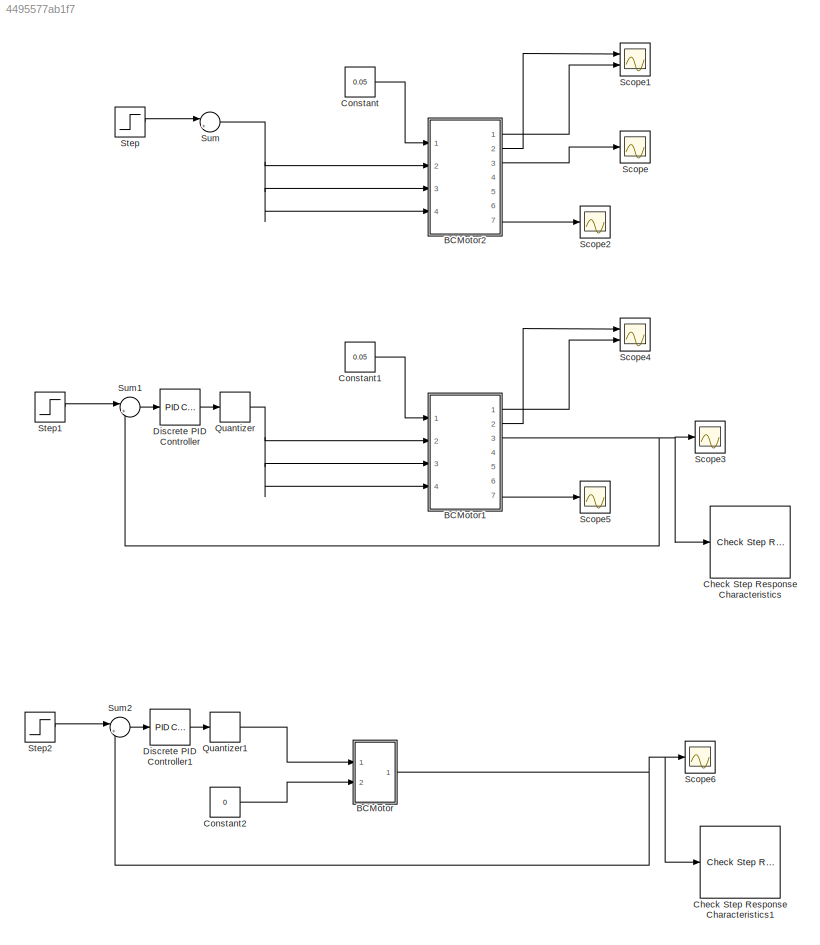
MODEL slx_4495577ab1f7
KIND model
CONFIG AbsTol = auto
CONFIG EnableMultiTasking = off
CONFIG FixedStep = auto
CONFIG MaxStep = auto
CONFIG MinStep = auto
CONFIG RelTol = 1e-5
CONFIG SampleTimeConstraint = Unconstrained
CONFIG SolverName = ode23
CONFIG StartTime = 0
CONFIG StopTime = 0.6
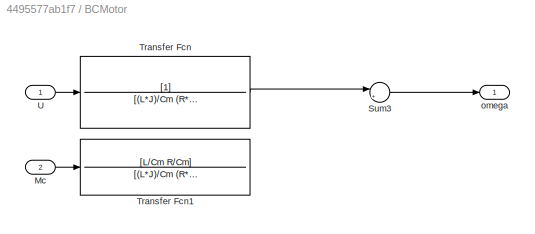
BLOCK [SubSystem] BCMotor
  Ports = [2, 1]
  RequestExecContextInheritance = off
BLOCK [Inport] BCMotor/Mc
  Port = 2
BLOCK [Sum] BCMotor/Sum3
  Inputs = |+-
  Ports = [2, 1]
BLOCK [TransferFcn] BCMotor/Transfer Fcn
  Denominator = [(L*J)/Cm (R*J)/Cm Ce]
BLOCK [TransferFcn] BCMotor/Transfer Fcn1
  Denominator = [(L*J)/Cm (R*J)/Cm Ce]
  Numerator = [L/Cm R/Cm]
BLOCK [Inport] BCMotor/U
BLOCK [Outport] BCMotor/omega
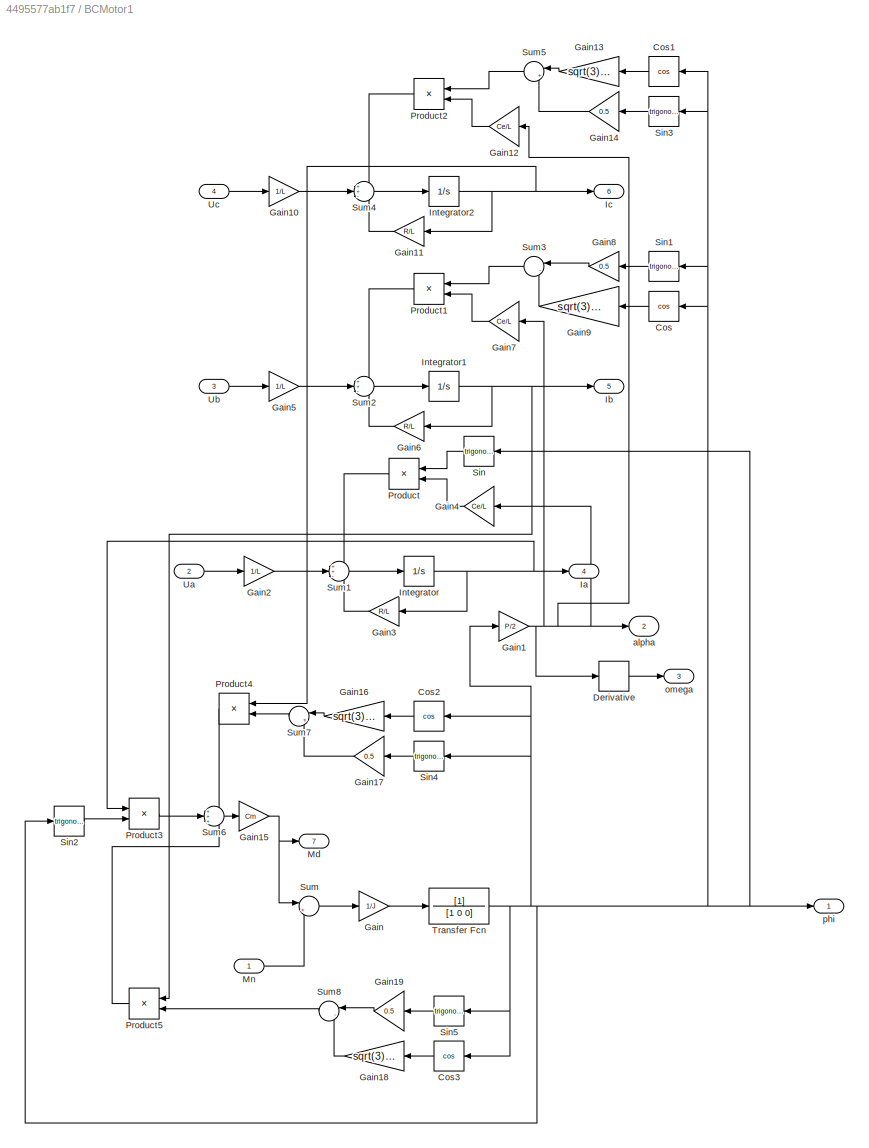
BLOCK [SubSystem] BCMotor1
  Commented = on
  Ports = [4, 7]
  RequestExecContextInheritance = off
BLOCK [Trigonometry] BCMotor1/Cos
  Operator = cos
  Ports = [1, 1]
BLOCK [Trigonometry] BCMotor1/Cos1
  Operator = cos
  Ports = [1, 1]
BLOCK [Trigonometry] BCMotor1/Cos2
  Operator = cos
  Ports = [1, 1]
BLOCK [Trigonometry] BCMotor1/Cos3
  Operator = cos
  Ports = [1, 1]
BLOCK [Derivative] BCMotor1/Derivative
BLOCK [Gain] BCMotor1/Gain
  Gain = 1/J
BLOCK [Gain] BCMotor1/Gain1
  Gain = P/2
BLOCK [Gain] BCMotor1/Gain10
  Gain = 1/L
BLOCK [Gain] BCMotor1/Gain11
  Gain = R/L
  NameLocation = top
BLOCK [Gain] BCMotor1/Gain12
  Gain = Ce/L
  NameLocation = top
BLOCK [Gain] BCMotor1/Gain13
  Gain = sqrt(3)/2
BLOCK [Gain] BCMotor1/Gain14
  Gain = 0.5
BLOCK [Gain] BCMotor1/Gain15
  Gain = Cm
BLOCK [Gain] BCMotor1/Gain16
  Gain = sqrt(3)/2
BLOCK [Gain] BCMotor1/Gain17
  Gain = 0.5
BLOCK [Gain] BCMotor1/Gain18
  Gain = sqrt(3)/2
BLOCK [Gain] BCMotor1/Gain19
  Gain = 0.5
BLOCK [Gain] BCMotor1/Gain2
  Gain = 1/L
BLOCK [Gain] BCMotor1/Gain3
  Gain = R/L
  NameLocation = top
BLOCK [Gain] BCMotor1/Gain4
  Gain = Ce/L
  NameLocation = top
BLOCK [Gain] BCMotor1/Gain5
  Gain = 1/L
BLOCK [Gain] BCMotor1/Gain6
  Gain = R/L
  NameLocation = top
BLOCK [Gain] BCMotor1/Gain7
  Gain = Ce/L
  NameLocation = top
BLOCK [Gain] BCMotor1/Gain8
  Gain = 0.5
BLOCK [Gain] BCMotor1/Gain9
  Gain = sqrt(3)/2
BLOCK [Outport] BCMotor1/Ia
  Port = 4
BLOCK [Outport] BCMotor1/Ib
  Port = 5
BLOCK [Outport] BCMotor1/Ic
  Port = 6
BLOCK [Integrator] BCMotor1/Integrator
  Ports = [1, 1]
BLOCK [Integrator] BCMotor1/Integrator1
  Ports = [1, 1]
BLOCK [Integrator] BCMotor1/Integrator2
  Ports = [1, 1]
BLOCK [Outport] BCMotor1/Md
  Port = 7
BLOCK [Inport] BCMotor1/Mn
BLOCK [Product] BCMotor1/Product
  Ports = [2, 1]
BLOCK [Product] BCMotor1/Product1
  Ports = [2, 1]
BLOCK [Product] BCMotor1/Product2
  Ports = [2, 1]
BLOCK [Product] BCMotor1/Product3
  Ports = [2, 1]
BLOCK [Product] BCMotor1/Product4
  Ports = [2, 1]
BLOCK [Product] BCMotor1/Product5
  Ports = [2, 1]
BLOCK [Trigonometry] BCMotor1/Sin
  Ports = [1, 1]
BLOCK [Trigonometry] BCMotor1/Sin1
  Ports = [1, 1]
BLOCK [Trigonometry] BCMotor1/Sin2
  Ports = [1, 1]
BLOCK [Trigonometry] BCMotor1/Sin3
  Ports = [1, 1]
BLOCK [Trigonometry] BCMotor1/Sin4
  Ports = [1, 1]
BLOCK [Trigonometry] BCMotor1/Sin5
  Ports = [1, 1]
BLOCK [Sum] BCMotor1/Sum
  Inputs = |+-
  Ports = [2, 1]
BLOCK [Sum] BCMotor1/Sum1
  Inputs = ++-
  Ports = [3, 1]
BLOCK [Sum] BCMotor1/Sum2
  Inputs = ++-
  Ports = [3, 1]
BLOCK [Sum] BCMotor1/Sum3
  Inputs = |--
  Ports = [2, 1]
BLOCK [Sum] BCMotor1/Sum4
  Inputs = ++-
  Ports = [3, 1]
BLOCK [Sum] BCMotor1/Sum5
  Inputs = |+-
  Ports = [2, 1]
BLOCK [Sum] BCMotor1/Sum6
  Inputs = +++
  Ports = [3, 1]
BLOCK [Sum] BCMotor1/Sum7
  Inputs = |+-
  Ports = [2, 1]
BLOCK [Sum] BCMotor1/Sum8
  Inputs = |--
  Ports = [2, 1]
BLOCK [TransferFcn] BCMotor1/Transfer Fcn
  Denominator = [1 0 0]
BLOCK [Inport] BCMotor1/Ua
  Port = 2
BLOCK [Inport] BCMotor1/Ub
  Port = 3
BLOCK [Inport] BCMotor1/Uc
  Port = 4
BLOCK [Outport] BCMotor1/alpha
  Port = 2
BLOCK [Outport] BCMotor1/omega
  Port = 3
BLOCK [Outport] BCMotor1/phi
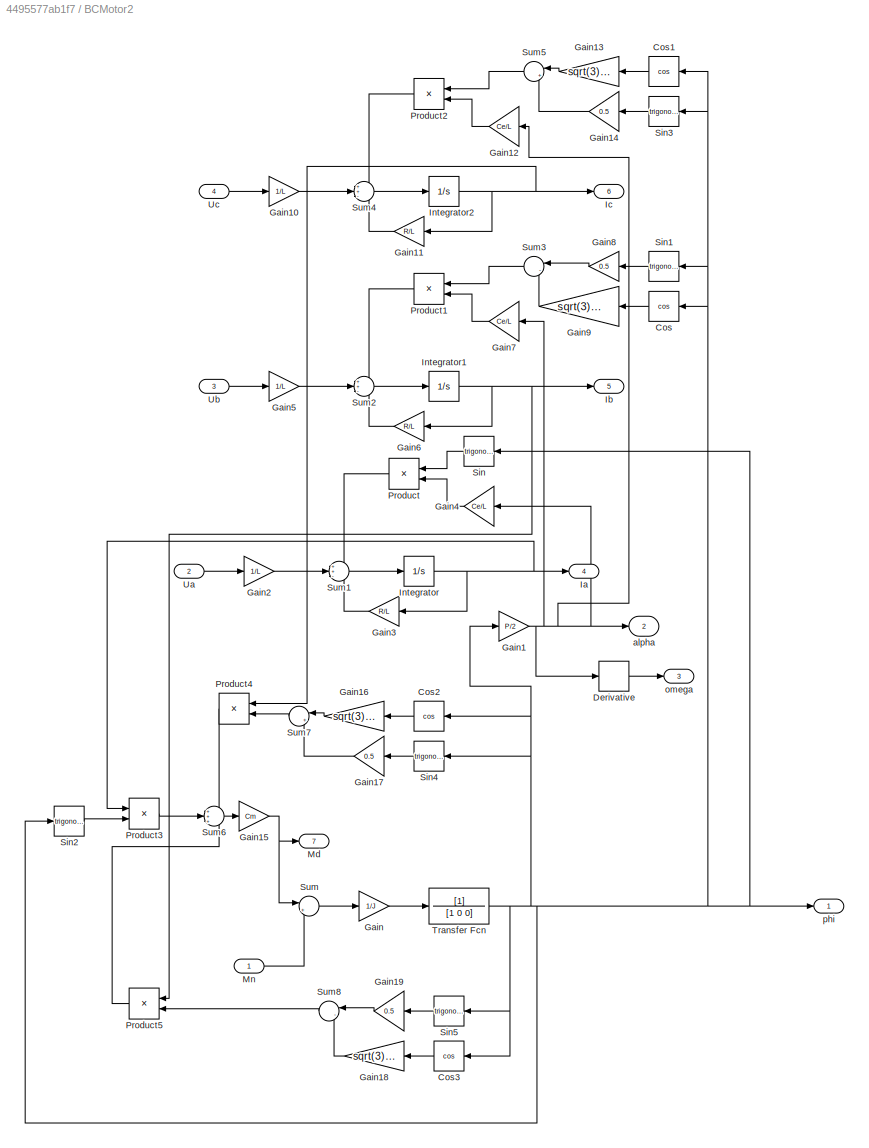
BLOCK [SubSystem] BCMotor2
  Commented = on
  Ports = [4, 7]
  RequestExecContextInheritance = off
BLOCK [Trigonometry] BCMotor2/Cos
  Operator = cos
  Ports = [1, 1]
BLOCK [Trigonometry] BCMotor2/Cos1
  Operator = cos
  Ports = [1, 1]
BLOCK [Trigonometry] BCMotor2/Cos2
  Operator = cos
  Ports = [1, 1]
BLOCK [Trigonometry] BCMotor2/Cos3
  Operator = cos
  Ports = [1, 1]
BLOCK [Derivative] BCMotor2/Derivative
BLOCK [Gain] BCMotor2/Gain
  Gain = 1/J
BLOCK [Gain] BCMotor2/Gain1
  Gain = P/2
BLOCK [Gain] BCMotor2/Gain10
  Gain = 1/L
BLOCK [Gain] BCMotor2/Gain11
  Gain = R/L
  NameLocation = top
BLOCK [Gain] BCMotor2/Gain12
  Gain = Ce/L
  NameLocation = top
BLOCK [Gain] BCMotor2/Gain13
  Gain = sqrt(3)/2
BLOCK [Gain] BCMotor2/Gain14
  Gain = 0.5
BLOCK [Gain] BCMotor2/Gain15
  Gain = Cm
BLOCK [Gain] BCMotor2/Gain16
  Gain = sqrt(3)/2
BLOCK [Gain] BCMotor2/Gain17
  Gain = 0.5
BLOCK [Gain] BCMotor2/Gain18
  Gain = sqrt(3)/2
BLOCK [Gain] BCMotor2/Gain19
  Gain = 0.5
BLOCK [Gain] BCMotor2/Gain2
  Gain = 1/L
BLOCK [Gain] BCMotor2/Gain3
  Gain = R/L
  NameLocation = top
BLOCK [Gain] BCMotor2/Gain4
  Gain = Ce/L
  NameLocation = top
BLOCK [Gain] BCMotor2/Gain5
  Gain = 1/L
BLOCK [Gain] BCMotor2/Gain6
  Gain = R/L
  NameLocation = top
BLOCK [Gain] BCMotor2/Gain7
  Gain = Ce/L
  NameLocation = top
BLOCK [Gain] BCMotor2/Gain8
  Gain = 0.5
BLOCK [Gain] BCMotor2/Gain9
  Gain = sqrt(3)/2
BLOCK [Outport] BCMotor2/Ia
  Port = 4
BLOCK [Outport] BCMotor2/Ib
  Port = 5
BLOCK [Outport] BCMotor2/Ic
  Port = 6
BLOCK [Integrator] BCMotor2/Integrator
  Ports = [1, 1]
BLOCK [Integrator] BCMotor2/Integrator1
  Ports = [1, 1]
BLOCK [Integrator] BCMotor2/Integrator2
  Ports = [1, 1]
BLOCK [Outport] BCMotor2/Md
  Port = 7
BLOCK [Inport] BCMotor2/Mn
BLOCK [Product] BCMotor2/Product
  Ports = [2, 1]
BLOCK [Product] BCMotor2/Product1
  Ports = [2, 1]
BLOCK [Product] BCMotor2/Product2
  Ports = [2, 1]
BLOCK [Product] BCMotor2/Product3
  Ports = [2, 1]
BLOCK [Product] BCMotor2/Product4
  Ports = [2, 1]
BLOCK [Product] BCMotor2/Product5
  Ports = [2, 1]
BLOCK [Trigonometry] BCMotor2/Sin
  Ports = [1, 1]
BLOCK [Trigonometry] BCMotor2/Sin1
  Ports = [1, 1]
BLOCK [Trigonometry] BCMotor2/Sin2
  Ports = [1, 1]
BLOCK [Trigonometry] BCMotor2/Sin3
  Ports = [1, 1]
BLOCK [Trigonometry] BCMotor2/Sin4
  Ports = [1, 1]
BLOCK [Trigonometry] BCMotor2/Sin5
  Ports = [1, 1]
BLOCK [Sum] BCMotor2/Sum
  Inputs = |+-
  Ports = [2, 1]
BLOCK [Sum] BCMotor2/Sum1
  Inputs = ++-
  Ports = [3, 1]
BLOCK [Sum] BCMotor2/Sum2
  Inputs = ++-
  Ports = [3, 1]
BLOCK [Sum] BCMotor2/Sum3
  Inputs = |--
  Ports = [2, 1]
BLOCK [Sum] BCMotor2/Sum4
  Inputs = ++-
  Ports = [3, 1]
BLOCK [Sum] BCMotor2/Sum5
  Inputs = |+-
  Ports = [2, 1]
BLOCK [Sum] BCMotor2/Sum6
  Inputs = +++
  Ports = [3, 1]
BLOCK [Sum] BCMotor2/Sum7
  Inputs = |+-
  Ports = [2, 1]
BLOCK [Sum] BCMotor2/Sum8
  Inputs = |--
  Ports = [2, 1]
BLOCK [TransferFcn] BCMotor2/Transfer Fcn
  Denominator = [1 0 0]
BLOCK [Inport] BCMotor2/Ua
  Port = 2
BLOCK [Inport] BCMotor2/Ub
  Port = 3
BLOCK [Inport] BCMotor2/Uc
  Port = 4
BLOCK [Outport] BCMotor2/alpha
  Port = 2
BLOCK [Outport] BCMotor2/omega
  Port = 3
BLOCK [Outport] BCMotor2/phi
BLOCK [Reference] Check Step Response Characteristics  REF=checkpacklib/Check Step Response 
Characteristics
  Commented = on
  InstantiateOnLoad = on
  Ports = [1]
  SourceBlock = checkpacklib/Check Step Response \nCharacteristics
  SourceProductBaseCode = CT,ID,MT,SO
  SourceType = Checks_StepResponse
BLOCK [Reference] Check Step Response Characteristics1  REF=checkpacklib/Check Step Response 
Characteristics
  InstantiateOnLoad = on
  Ports = [1]
  SourceBlock = checkpacklib/Check Step Response \nCharacteristics
  SourceProductBaseCode = CT,ID,MT,SO
  SourceType = Checks_StepResponse
BLOCK [Constant] Constant
  Commented = on
  Value = 0.05
BLOCK [Constant] Constant1
  Commented = on
  Value = 0.05
BLOCK [Constant] Constant2
  Value = 0
BLOCK [Reference] Discrete PID Controller  REF=pid_lib/PID Controller
  Commented = on
  Ports = [1, 1]
  SourceBlock = pid_lib/PID Controller
  SourceProductBaseCode = SL
  SourceType = PID 1dof
BLOCK [Reference] Discrete PID Controller1  REF=pid_lib/PID Controller
  Ports = [1, 1]
  SourceBlock = pid_lib/PID Controller
  SourceProductBaseCode = SL
  SourceType = PID 1dof
BLOCK [Quantizer] Quantizer
  Commented = on
  LinearizeAsGain = off
  QuantizationInterval = 0.02
BLOCK [Quantizer] Quantizer1
  LinearizeAsGain = off
  QuantizationInterval = 0.001
BLOCK [Scope] Scope
  Commented = on
  Floating = off
  NumInputPorts = 1
  Ports = [1]
  ScopeSpecificationString = Simulink.scopes.TimeScopeBlockCfg('CurrentConfiguration', extmgr.ConfigurationSet(extmgr.Configuration('Core','General UI',true),extmgr.Configuration('Core','Source UI',true),extmgr.Configuration('Sources','WiredSimulink',true),extmgr.Configuration('Visuals','Time Domain',true,'SerializedDisplays',{struct('MinYLimReal','-10964.5753','MaxYLimReal','1218.28614','YLabelReal','','MinYLimMag','   0.000...<+1393ch>
BLOCK [Scope] Scope1
  Commented = on
  Floating = off
  NumInputPorts = 2
  Ports = [2]
  ScopeSpecificationString = Simulink.scopes.TimeScopeBlockCfg('CurrentConfiguration', extmgr.ConfigurationSet(extmgr.Configuration('Core','General UI',true),extmgr.Configuration('Core','Source UI',true),extmgr.Configuration('Sources','WiredSimulink',true,'DataLoggingVariableName','ScopeData1'),extmgr.Configuration('Visuals','Time Domain',true,'SerializedDisplays',{struct('MinYLimReal','-5.72647','MaxYLimReal','13.19882','YLa...<+1436ch>
BLOCK [Scope] Scope2
  Commented = on
  Floating = off
  NumInputPorts = 1
  Ports = [1]
  ScopeSpecificationString = Simulink.scopes.TimeScopeBlockCfg('CurrentConfiguration', extmgr.ConfigurationSet(extmgr.Configuration('Core','General UI',true),extmgr.Configuration('Core','Source UI',true),extmgr.Configuration('Sources','WiredSimulink',true,'DataLoggingVariableName','ScopeData2'),extmgr.Configuration('Visuals','Time Domain',true,'SerializedDisplays',{struct('MinYLimReal','-76.98823','MaxYLimReal','79.78815','YL...<+1374ch>
BLOCK [Scope] Scope3
  Commented = on
  Floating = off
  NumInputPorts = 1
  Ports = [1]
  ScopeSpecificationString = Simulink.scopes.TimeScopeBlockCfg('CurrentConfiguration', extmgr.ConfigurationSet(extmgr.Configuration('Core','General UI',true),extmgr.Configuration('Core','Source UI',true),extmgr.Configuration('Sources','WiredSimulink',true,'DataLoggingVariableName','ScopeData1'),extmgr.Configuration('Visuals','Time Domain',true,'SerializedDisplays',{struct('MinYLimReal','-3011.66804','MaxYLimReal','3021.05345'...<+1474ch>
BLOCK [Scope] Scope4
  Commented = on
  Floating = off
  NumInputPorts = 2
  Ports = [2]
  ScopeSpecificationString = Simulink.scopes.TimeScopeBlockCfg('CurrentConfiguration', extmgr.ConfigurationSet(extmgr.Configuration('Core','General UI',true),extmgr.Configuration('Core','Source UI',true),extmgr.Configuration('Sources','WiredSimulink',true,'DataLoggingVariableName','ScopeData2'),extmgr.Configuration('Visuals','Time Domain',true,'SerializedDisplays',{struct('MinYLimReal','-18.24931','MaxYLimReal','10.3509','YLa...<+1425ch>
BLOCK [Scope] Scope5
  Commented = on
  Floating = off
  NumInputPorts = 1
  Ports = [1]
  ScopeSpecificationString = Simulink.scopes.TimeScopeBlockCfg('CurrentConfiguration', extmgr.ConfigurationSet(extmgr.Configuration('Core','General UI',true),extmgr.Configuration('Core','Source UI',true),extmgr.Configuration('Sources','WiredSimulink',true,'DataLoggingVariableName','ScopeData3'),extmgr.Configuration('Visuals','Time Domain',true,'SerializedDisplays',{struct('MinYLimReal','-4.71058','MaxYLimReal','5.50097','YLab...<+1369ch>
BLOCK [Scope] Scope6
  Floating = off
  NumInputPorts = 1
  Ports = [1]
  ScopeSpecificationString = Simulink.scopes.TimeScopeBlockCfg('CurrentConfiguration', extmgr.ConfigurationSet(extmgr.Configuration('Core','General UI',true,'FigureColor',[1 1 1]),extmgr.Configuration('Core','Source UI',true),extmgr.Configuration('Sources','WiredSimulink',true,'DataLoggingVariableName','ScopeData1'),extmgr.Configuration('Visuals','Time Domain',true,'SerializedDisplays',{struct('MinYLimReal','-0.158','MaxYLimR...<+1568ch>
BLOCK [Step] Step
  After = 24
  Commented = on
  SampleTime = 0
  Time = 0
BLOCK [Step] Step1
  After = 24
  Commented = on
  SampleTime = 0
  Time = 0
BLOCK [Step] Step2
  SampleTime = 0
  Time = 0
BLOCK [Sum] Sum
  Commented = on
  Inputs = |+-
  Ports = [2, 1]
BLOCK [Sum] Sum1
  Commented = on
  Inputs = |+-
  Ports = [2, 1]
BLOCK [Sum] Sum2
  Inputs = |+-
  Ports = [2, 1]
LINE BCMotor/Mc:1 -> BCMotor/Transfer Fcn1:1
LINE BCMotor/Sum3:1 -> BCMotor/omega:1
LINE BCMotor/Transfer Fcn:1 -> BCMotor/Sum3:1
LINE BCMotor/U:1 -> BCMotor/Transfer Fcn:1
LINE BCMotor1/Cos1:1 -> BCMotor1/Gain13:1
LINE BCMotor1/Cos2:1 -> BCMotor1/Gain16:1
LINE BCMotor1/Cos3:1 -> BCMotor1/Gain18:1
LINE BCMotor1/Cos:1 -> BCMotor1/Gain9:1
LINE BCMotor1/Derivative:1 -> BCMotor1/omega:1
LINE BCMotor1/Gain10:1 -> BCMotor1/Sum4:2
LINE BCMotor1/Gain11:1 -> BCMotor1/Sum4:3
LINE BCMotor1/Gain12:1 -> BCMotor1/Product2:2
LINE BCMotor1/Gain13:1 -> BCMotor1/Sum5:1
LINE BCMotor1/Gain14:1 -> BCMotor1/Sum5:2
NET BCMotor1/Gain15:1 -> BCMotor1/Md:1, BCMotor1/Sum:1
LINE BCMotor1/Gain16:1 -> BCMotor1/Sum7:1
LINE BCMotor1/Gain17:1 -> BCMotor1/Sum7:2
LINE BCMotor1/Gain18:1 -> BCMotor1/Sum8:2
LINE BCMotor1/Gain19:1 -> BCMotor1/Sum8:1
NET BCMotor1/Gain1:1 -> BCMotor1/Derivative:1, BCMotor1/Gain12:1, BCMotor1/Gain4:1, BCMotor1/Gain7:1, BCMotor1/alpha:1
LINE BCMotor1/Gain2:1 -> BCMotor1/Sum1:2
LINE BCMotor1/Gain3:1 -> BCMotor1/Sum1:3
LINE BCMotor1/Gain4:1 -> BCMotor1/Product:2
LINE BCMotor1/Gain5:1 -> BCMotor1/Sum2:2
LINE BCMotor1/Gain6:1 -> BCMotor1/Sum2:3
LINE BCMotor1/Gain7:1 -> BCMotor1/Product1:2
LINE BCMotor1/Gain8:1 -> BCMotor1/Sum3:1
LINE BCMotor1/Gain9:1 -> BCMotor1/Sum3:2
LINE BCMotor1/Gain:1 -> BCMotor1/Transfer Fcn:1
NET BCMotor1/Integrator1:1 -> BCMotor1/Gain6:1, BCMotor1/Ib:1, BCMotor1/Product5:1
NET BCMotor1/Integrator2:1 -> BCMotor1/Gain11:1, BCMotor1/Ic:1, BCMotor1/Product4:1
NET BCMotor1/Integrator:1 -> BCMotor1/Gain3:1, BCMotor1/Ia:1, BCMotor1/Product3:1
LINE BCMotor1/Mn:1 -> BCMotor1/Sum:2
LINE BCMotor1/Product1:1 -> BCMotor1/Sum2:1
LINE BCMotor1/Product2:1 -> BCMotor1/Sum4:1
LINE BCMotor1/Product3:1 -> BCMotor1/Sum6:2
LINE BCMotor1/Product4:1 -> BCMotor1/Sum6:1
LINE BCMotor1/Product5:1 -> BCMotor1/Sum6:3
LINE BCMotor1/Product:1 -> BCMotor1/Sum1:1
LINE BCMotor1/Sin1:1 -> BCMotor1/Gain8:1
LINE BCMotor1/Sin2:1 -> BCMotor1/Product3:2
LINE BCMotor1/Sin3:1 -> BCMotor1/Gain14:1
LINE BCMotor1/Sin4:1 -> BCMotor1/Gain17:1
LINE BCMotor1/Sin5:1 -> BCMotor1/Gain19:1
LINE BCMotor1/Sin:1 -> BCMotor1/Product:1
LINE BCMotor1/Sum1:1 -> BCMotor1/Integrator:1
LINE BCMotor1/Sum2:1 -> BCMotor1/Integrator1:1
LINE BCMotor1/Sum3:1 -> BCMotor1/Product1:1
LINE BCMotor1/Sum4:1 -> BCMotor1/Integrator2:1
LINE BCMotor1/Sum5:1 -> BCMotor1/Product2:1
LINE BCMotor1/Sum6:1 -> BCMotor1/Gain15:1
LINE BCMotor1/Sum7:1 -> BCMotor1/Product4:2
LINE BCMotor1/Sum8:1 -> BCMotor1/Product5:2
LINE BCMotor1/Sum:1 -> BCMotor1/Gain:1
NET BCMotor1/Transfer Fcn:1 -> BCMotor1/Cos1:1, BCMotor1/Cos2:1, BCMotor1/Cos3:1, BCMotor1/Cos:1, BCMotor1/Gain1:1, BCMotor1/Sin1:1, BCMotor1/Sin2:1, BCMotor1/Sin3:1, BCMotor1/Sin4:1, BCMotor1/Sin5:1, BCMotor1/Sin:1, BCMotor1/phi:1
LINE BCMotor1/Ua:1 -> BCMotor1/Gain2:1
LINE BCMotor1/Ub:1 -> BCMotor1/Gain5:1
LINE BCMotor1/Uc:1 -> BCMotor1/Gain10:1
LINE BCMotor1:1 -> Scope4:2
LINE BCMotor1:2 -> Scope4:1
NET BCMotor1:3 -> Check Step Response Characteristics:1, Scope3:1, Sum1:2
LINE BCMotor1:7 -> Scope5:1
LINE BCMotor2/Cos1:1 -> BCMotor2/Gain13:1
LINE BCMotor2/Cos2:1 -> BCMotor2/Gain16:1
LINE BCMotor2/Cos3:1 -> BCMotor2/Gain18:1
LINE BCMotor2/Cos:1 -> BCMotor2/Gain9:1
LINE BCMotor2/Derivative:1 -> BCMotor2/omega:1
LINE BCMotor2/Gain10:1 -> BCMotor2/Sum4:2
LINE BCMotor2/Gain11:1 -> BCMotor2/Sum4:3
LINE BCMotor2/Gain12:1 -> BCMotor2/Product2:2
LINE BCMotor2/Gain13:1 -> BCMotor2/Sum5:1
LINE BCMotor2/Gain14:1 -> BCMotor2/Sum5:2
NET BCMotor2/Gain15:1 -> BCMotor2/Md:1, BCMotor2/Sum:1
LINE BCMotor2/Gain16:1 -> BCMotor2/Sum7:1
LINE BCMotor2/Gain17:1 -> BCMotor2/Sum7:2
LINE BCMotor2/Gain18:1 -> BCMotor2/Sum8:2
LINE BCMotor2/Gain19:1 -> BCMotor2/Sum8:1
NET BCMotor2/Gain1:1 -> BCMotor2/Derivative:1, BCMotor2/Gain12:1, BCMotor2/Gain4:1, BCMotor2/Gain7:1, BCMotor2/alpha:1
LINE BCMotor2/Gain2:1 -> BCMotor2/Sum1:2
LINE BCMotor2/Gain3:1 -> BCMotor2/Sum1:3
LINE BCMotor2/Gain4:1 -> BCMotor2/Product:2
LINE BCMotor2/Gain5:1 -> BCMotor2/Sum2:2
LINE BCMotor2/Gain6:1 -> BCMotor2/Sum2:3
LINE BCMotor2/Gain7:1 -> BCMotor2/Product1:2
LINE BCMotor2/Gain8:1 -> BCMotor2/Sum3:1
LINE BCMotor2/Gain9:1 -> BCMotor2/Sum3:2
LINE BCMotor2/Gain:1 -> BCMotor2/Transfer Fcn:1
NET BCMotor2/Integrator1:1 -> BCMotor2/Gain6:1, BCMotor2/Ib:1, BCMotor2/Product5:1
NET BCMotor2/Integrator2:1 -> BCMotor2/Gain11:1, BCMotor2/Ic:1, BCMotor2/Product4:1
NET BCMotor2/Integrator:1 -> BCMotor2/Gain3:1, BCMotor2/Ia:1, BCMotor2/Product3:1
LINE BCMotor2/Mn:1 -> BCMotor2/Sum:2
LINE BCMotor2/Product1:1 -> BCMotor2/Sum2:1
LINE BCMotor2/Product2:1 -> BCMotor2/Sum4:1
LINE BCMotor2/Product3:1 -> BCMotor2/Sum6:2
LINE BCMotor2/Product4:1 -> BCMotor2/Sum6:1
LINE BCMotor2/Product5:1 -> BCMotor2/Sum6:3
LINE BCMotor2/Product:1 -> BCMotor2/Sum1:1
LINE BCMotor2/Sin1:1 -> BCMotor2/Gain8:1
LINE BCMotor2/Sin2:1 -> BCMotor2/Product3:2
LINE BCMotor2/Sin3:1 -> BCMotor2/Gain14:1
LINE BCMotor2/Sin4:1 -> BCMotor2/Gain17:1
LINE BCMotor2/Sin5:1 -> BCMotor2/Gain19:1
LINE BCMotor2/Sin:1 -> BCMotor2/Product:1
LINE BCMotor2/Sum1:1 -> BCMotor2/Integrator:1
LINE BCMotor2/Sum2:1 -> BCMotor2/Integrator1:1
LINE BCMotor2/Sum3:1 -> BCMotor2/Product1:1
LINE BCMotor2/Sum4:1 -> BCMotor2/Integrator2:1
LINE BCMotor2/Sum5:1 -> BCMotor2/Product2:1
LINE BCMotor2/Sum6:1 -> BCMotor2/Gain15:1
LINE BCMotor2/Sum7:1 -> BCMotor2/Product4:2
LINE BCMotor2/Sum8:1 -> BCMotor2/Product5:2
LINE BCMotor2/Sum:1 -> BCMotor2/Gain:1
NET BCMotor2/Transfer Fcn:1 -> BCMotor2/Cos1:1, BCMotor2/Cos2:1, BCMotor2/Cos3:1, BCMotor2/Cos:1, BCMotor2/Gain1:1, BCMotor2/Sin1:1, BCMotor2/Sin2:1, BCMotor2/Sin3:1, BCMotor2/Sin4:1, BCMotor2/Sin5:1, BCMotor2/Sin:1, BCMotor2/phi:1
LINE BCMotor2/Ua:1 -> BCMotor2/Gain2:1
LINE BCMotor2/Ub:1 -> BCMotor2/Gain5:1
LINE BCMotor2/Uc:1 -> BCMotor2/Gain10:1
LINE BCMotor2:1 -> Scope1:2
LINE BCMotor2:2 -> Scope1:1
LINE BCMotor2:3 -> Scope:1
LINE BCMotor2:7 -> Scope2:1
NET BCMotor:1 -> Check Step Response Characteristics1:1, Scope6:1, Sum2:2
LINE Constant1:1 -> BCMotor1:1
LINE Constant2:1 -> BCMotor:2
LINE Constant:1 -> BCMotor2:1
LINE Discrete PID Controller1:1 -> Quantizer1:1
LINE Discrete PID Controller:1 -> Quantizer:1
LINE Quantizer1:1 -> BCMotor:1
NET Quantizer:1 -> BCMotor1:2, BCMotor1:3, BCMotor1:4
LINE Step1:1 -> Sum1:1
LINE Step2:1 -> Sum2:1
LINE Step:1 -> Sum:1
LINE Sum1:1 -> Discrete PID Controller:1
LINE Sum2:1 -> Discrete PID Controller1:1
NET Sum:1 -> BCMotor2:2, BCMotor2:3, BCMotor2:4
note: NET lines group one-source signal fan-out (src -> all destinations, sorted); 1:1 wires keep LINE
